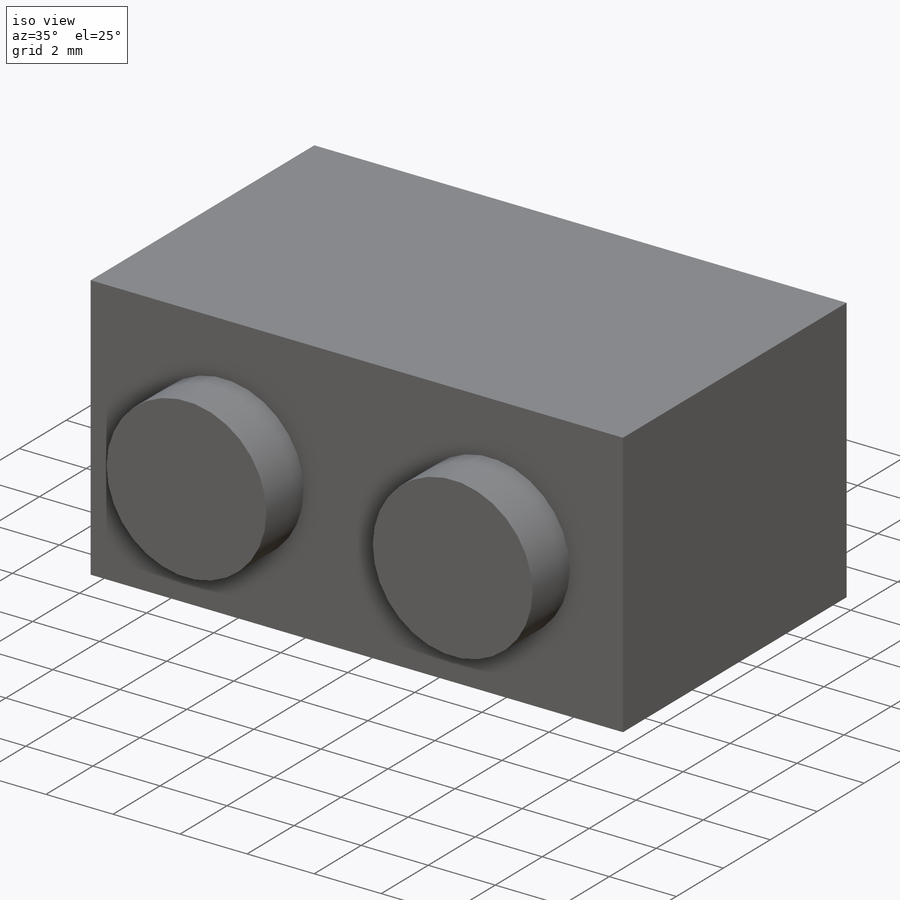
[diagram: iso view]
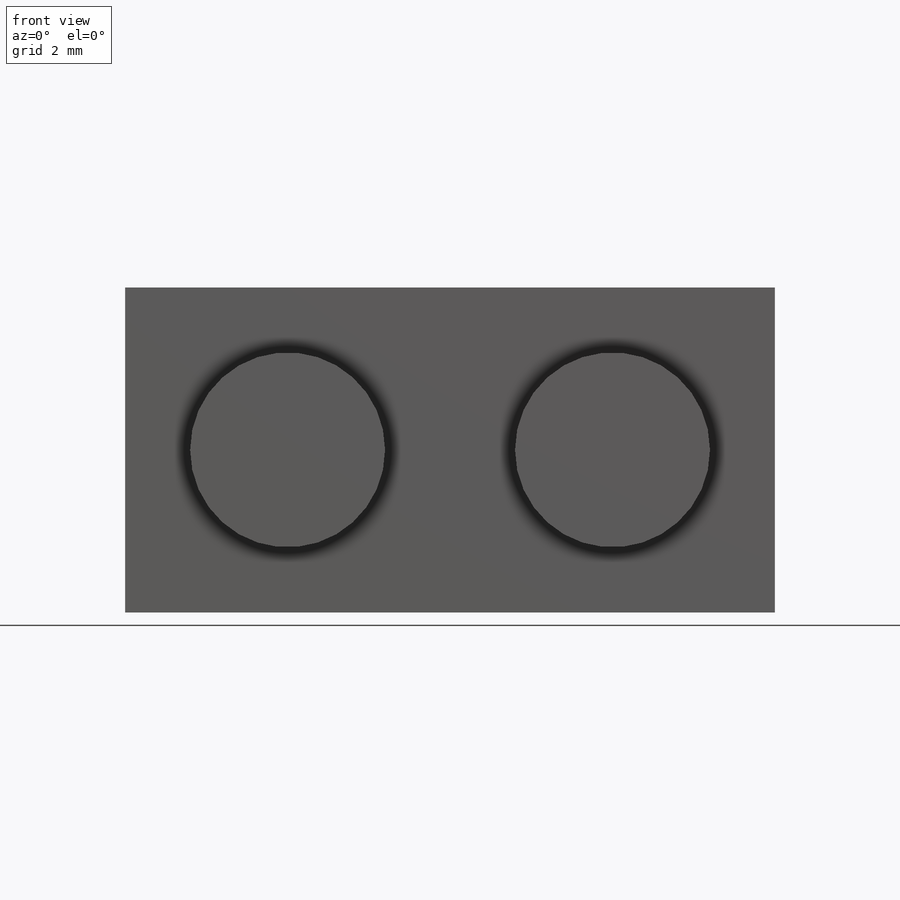
[diagram: front view]
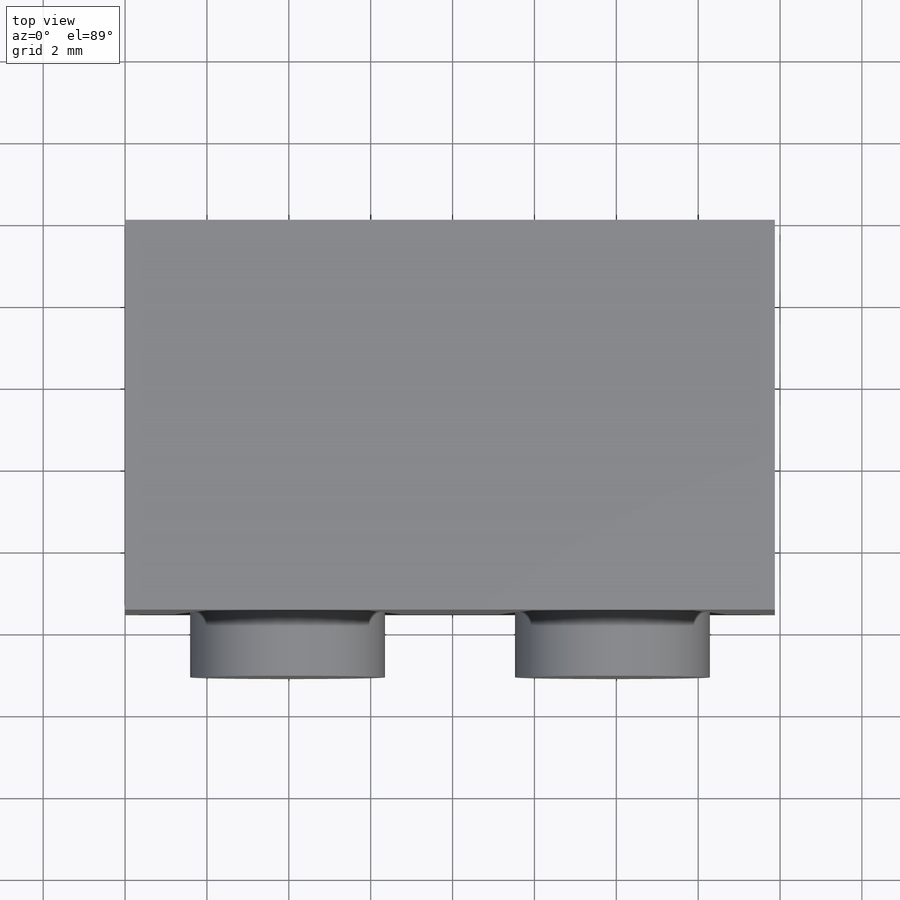
[diagram: top view]
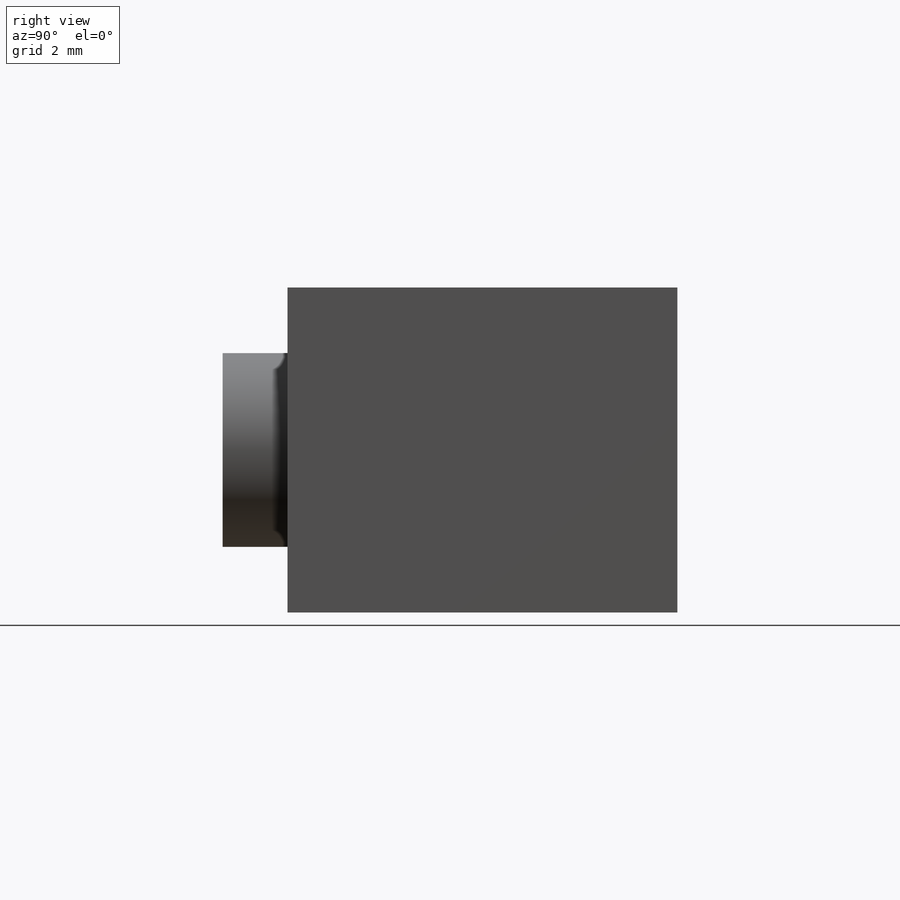
[diagram: right view]
SOLIDWORKS PART (.sldprt)
format: sldprt  version: not decoded by parser v0  size: 162,304 bytes
history: native  units: mm
features: sketch x3, extrude x3, material x1, pattern_linear x1, shell x1 (+11 scaffold rows collapsed)
feature tree (20):
  scaffold x11  (default folders/planes/origin — collapsed)
  material  "Material <not specified>"
  sketch  "Sketch1"  dims[D1=7.9375mm D2=15.875mm]
  extrude  "Boss-Extrude1"  Depth=9.525mm
  sketch  "Sketch2"  dims[D1=4.7625mm D4=4.7625mm D2=~3.96875mm D3=~3.96875mm]
  extrude  "Boss-Extrude2"  Depth=1.5875mm
  pattern_linear  "LPattern1"  Count1=2 Count2=1 Spacing1=7.9375mm Spacing2=2.54mm
  shell  "Shell3"  Thickness=1.5875mm
  sketch  "Sketch3"  dims[D1=3.175mm D2=~3.96875mm D3=7.9375mm]
  extrude  "Boss-Extrude3"  Depth=7.9375mm
decode coverage: 8 of 8 modeling features carry decoded parameters
note: ~ marks probable driven/reference dimensions
note: suppression state not decoded; provenance and decode notes live in map.json
